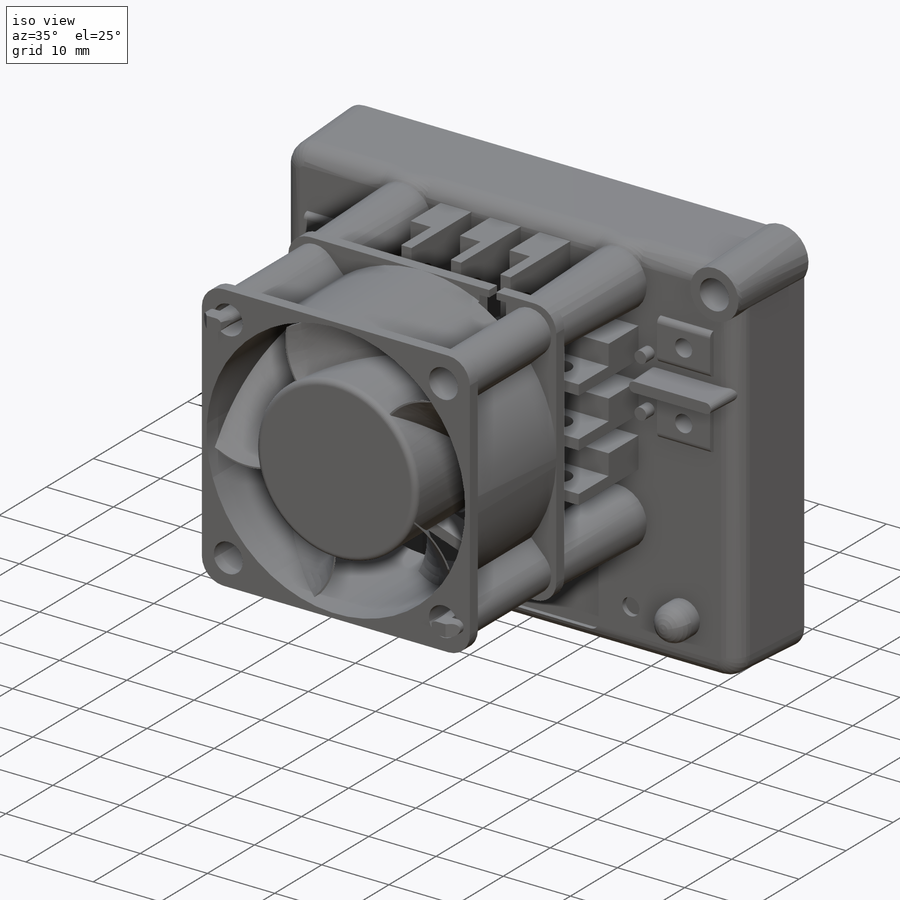
[diagram: iso view]
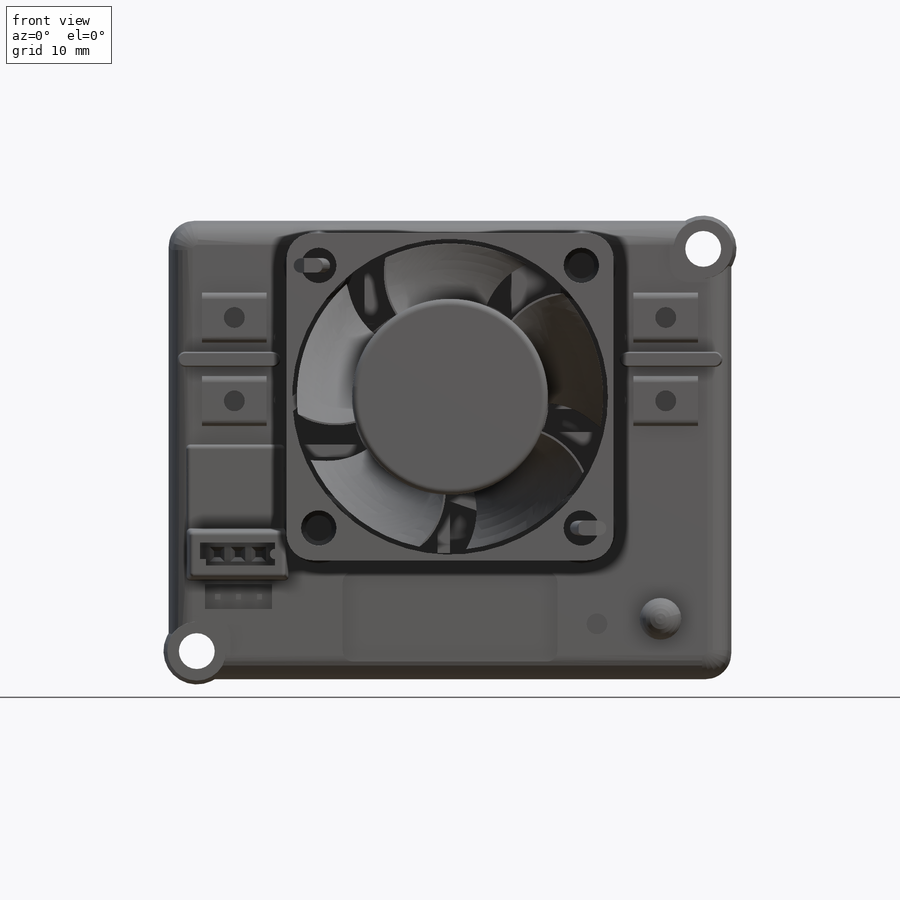
[diagram: front view]
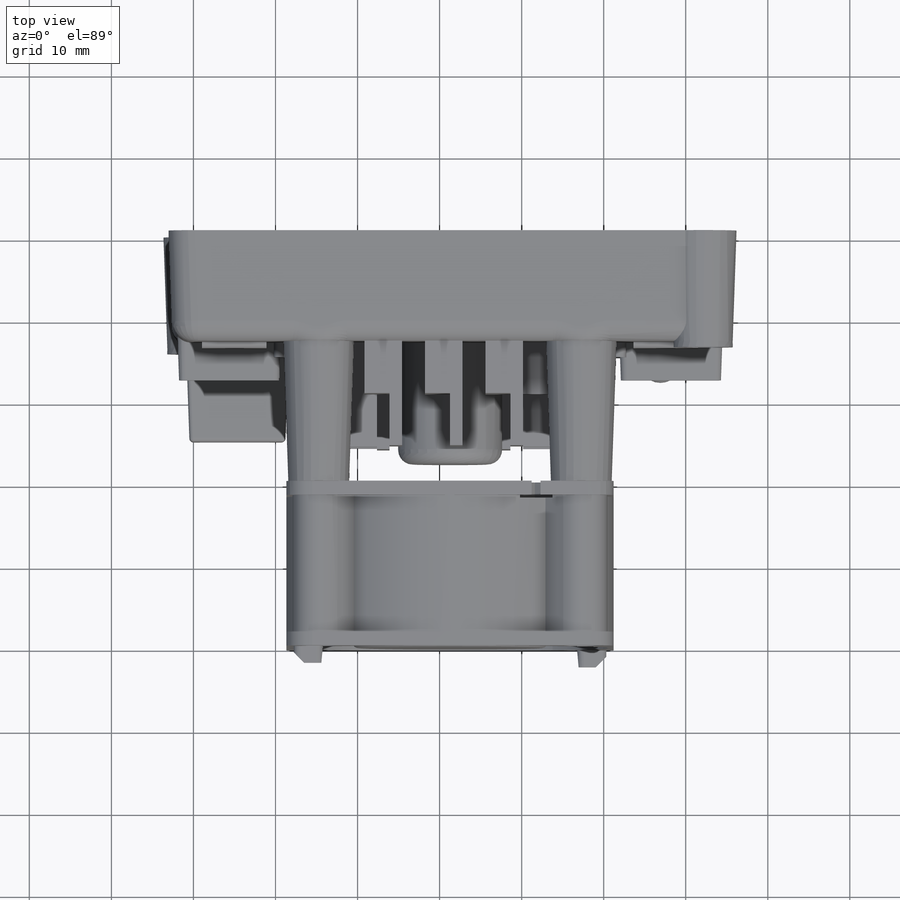
[diagram: top view]
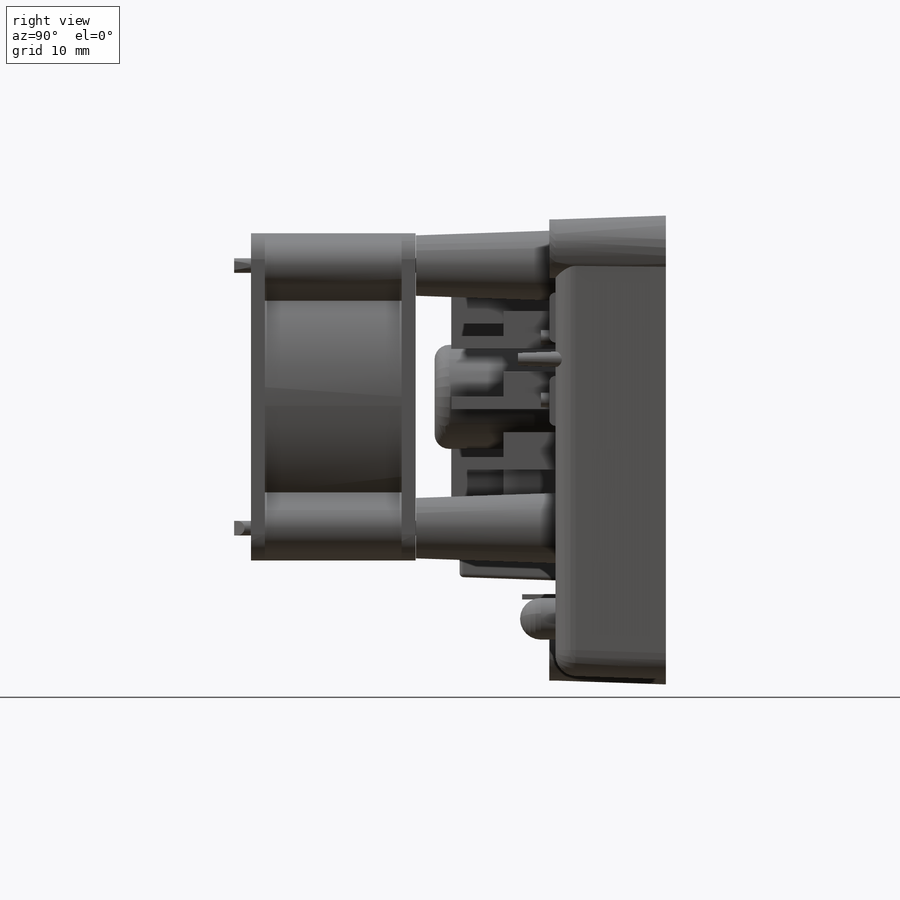
[diagram: right view]
SOLIDWORKS PART (.sldprt)
format: sldprt  version: not decoded by parser v0  size: 2,040,832 bytes
history: native  units: mm
features: sketch x45, extrude x23, plane x10, mirror x10, chamfer x10, cut_extrude x8, fillet x4, surface_op x3, pattern_circular x2, pattern_linear x2, material x1, dome x1 (+13 scaffold rows collapsed)
feature tree (132):
  scaffold x13  (default folders/planes/origin — collapsed)
  material  "Material <not specified>"
  surface_op  "Surface-Knit2"
  surface_op  "Surface-Knit3"
  surface_op  "Surface-Knit4"
  plane  "Plane1"  Offset=0.0254mm
  sketch  "Sketch1"  dims[D1=7.366mm D2=~34.550083mm]
  extrude  "Boss-Extrude1"  Depth=17.018mm
  sketch  "Sketch2"  dims[D2=1.27mm D3=1.778mm D4=1.778mm D1=0.0mm]
  extrude  "Boss-Extrude2"  Depth=10.16mm
  plane  "Plane2"  Offset=0.0254mm
  sketch  "Sketch3"  dims[D2=~0.912004mm D1=0.0mm]
  sketch  "Sketch4"  dims[D1=1.778mm]
  extrude  "Boss-Extrude3"  Depth=2.032mm
  sketch  "Sketch6"  dims[D1=0.762mm D2=1.27mm]
  cut_extrude  "Cut-Extrude1"  [1 undecoded]
  pattern_circular  "CirPattern1"  Count=2 Angle=360deg
  sketch  "Sketch7"  dims[c1.D5=4.3688mm c1.D6=7.112mm c1.D7=~13.902773mm c1.D1=~58.122465mm c1.D2=~65.438579mm c2.D1=61.722mm c2.D2=49.022mm c2.D4=18.034mm c2.D3=0.0mm]
  plane  "Plane3"  Offset=13.462mm
  sketch  "Sketch8"  dims[D1=8.128mm D2=~17.33088mm]
  extrude  "Boss-Extrude4"  [1 undecoded]
  extrude  "Boss-Extrude5"  [1 undecoded]
  sketch  "Sketch9"  dims[c1.D1=49.022mm c1.D2=61.722mm c2.D1=~53.144827mm c2.D2=~81.786629mm c3.D1=68.58mm c3.D2=55.88mm c3.D3=~1.212325mm]
  extrude  "Boss-Extrude6"  [1 undecoded]
  fillet  "Fillet1"  Radius=3.175mm
  sketch  "Sketch10"  dims[c1.D3=50.8mm c1.D4=0.762mm c2.D3=6.35mm c2.D1=0.0mm c2.D2=1.27mm]
  cut_extrude  "Cut-Extrude2"  Depth=0.762mm
  sketch  "Sketch11"  dims[c1.D1=~57.177746mm c1.D2=~10.189186mm c1.D3=~4.44144mm c2.D2=4.445mm c2.D3=10.16mm c2.D4=1.524mm c2.D5=7.9375mm c3.D2=3.048mm c3.D5=13.97mm]
  extrude  "Boss-Extrude7"  Depth=6.35mm
  extrude  "Boss-Extrude8"  [1 undecoded]
  sketch  "Sketch11<3>"  dims[D1=12.7mm]
  sketch  "Sketch12"  dims[c1.D1=~2.999938mm c1.D2=3.81mm c2.D1=2.794mm c2.D3=~6.574302mm]
  cut_extrude  "Cut-Extrude3"  [1 undecoded]
  pattern_linear  "LPattern1"  Count1=2 Count2=1 Spacing1=7.366mm Spacing2=2.54mm
  pattern_linear  "LPattern2"  Count1=2 Count2=1 Spacing1=7.366mm Spacing2=2.54mm
  pattern_circular  "CirPattern3"  Count=4 Angle=360deg
  extrude  "Boss-Extrude9"  [1 undecoded]
  sketch  "Sketch11<5>"  dims[D1=14.732mm]
  fillet  "Fillet2"  Radius=1.778mm
  sketch  "Sketch13"  dims[D1=~7.187793mm]
  extrude  "Boss-Extrude10"  Depth=0.762mm
  sketch  "Sketch14"  dims[D1=0.0mm]
  extrude  "Boss-Extrude11"  [1 undecoded]
  sketch  "Sketch15"  dims[D1=0.0mm]
  extrude  "Boss-Extrude12"  [1 undecoded]
  sketch  "Sketch16"  dims[D1=0.0mm]
  extrude  "Boss-Extrude13"  [1 undecoded]
  sketch  "Sketch17"  dims[D1=0.0mm]
  extrude  "Boss-Extrude15"  [1 undecoded]
  fillet  "Fillet3"  Radius=2.54mm
  sketch  "Sketch18"  dims[c1.D4=1.27mm c1.D5=~1.692823mm c1.D7=2.54mm c1.D1=~9.402158mm c1.D2=~24.989947mm c2.D1=26.162mm c2.D2=10.922mm c2.D3=0.762mm c2.D5=4.826mm c2.D6=6.35mm]
  cut_extrude  "Cut-Extrude4"  Depth=0.762mm
  sketch  "Sketch19"  dims[c1.D1=~5.261919mm c1.D3=5.08mm c1.D4=1.778mm c2.D1=8.636mm c2.D2=7.366mm c2.D5=13.716mm c2.D6=14.224mm c2.D7=7.62mm c2.D8=~4.180287mm]
  extrude  "Boss-Extrude16"  Depth=1.778mm
  dome  "Dome1"
  plane  "Plane4"  Offset=4.572mm
  sketch  "Sketch20"  dims[D1=10.668mm D2=2.54mm D3=1.524mm D4=0.508mm]
  extrude  "Boss-Extrude17"  [1 undecoded]
  plane  "Plane5"  Offset=11.176mm
  sketch  "Sketch21"  dims[D1=4.572mm D2=0.762mm D3=2.794mm]
  extrude  "Boss-Extrude18"  Depth=7.874mm
  sketch  "Sketch22"  dims[D1=~4.290422mm]
  cut_extrude  "Cut-Extrude5"  Depth=3.175mm
  plane  "Plane6"
  mirror  "Mirror1"
  sketch  "Sketch23"  dims[c1.D1=~5.181771mm c1.D2=~8.146411mm c2.D1=4.064mm c2.D2=8.128mm c2.D3=3.048mm c2.D4=8.128mm]
  cut_extrude  "Cut-Extrude6"  Depth=2.286mm
  plane  "Plane7"  Offset=11.684mm
  sketch  "Sketch24"  dims[c1.D1=~2.149231mm c1.D2=~8.596925mm c2.D1=~4.898983mm c2.D2=~10.358978mm c3.D1=9.144mm c3.D2=2.794mm c3.D3=3.81mm c3.D4=2.286mm c3.D5=11.684mm c3.D6=5.588mm]
  extrude  "Boss-Extrude19"  [1 undecoded]
  plane  "Plane8"  Offset=1.524mm
  sketch  "Sketch25"  dims[D1=10.16mm]
  extrude  "Boss-Extrude20"  [1 undecoded]
  fillet  "Fillet4"  Radius=0.508mm
  sketch  "Sketch27"  dims[D1=0.0mm]
  cut_extrude  "Cut-Extrude7"  [1 undecoded]
  sketch  "Sketch26"  dims[c1.D1=~0.848898mm c1.D2=~0.813689mm c2.D1=0.762mm c2.D2=0.762mm]
  extrude  "Boss-Extrude21"  Depth=10.16mm
  sketch  "Sketch29"  dims[D1=1.27mm]
  extrude  "Boss-Extrude22"  Depth=1.27mm
  sketch  "Sketch30"  dims[c1.D1=~15.607557mm c1.D2=0.635mm c1.D3=2.54mm c2.D1=3.0]
  extrude  "Boss-Extrude23"  Depth=6.35mm
  sketch  "Sketch31"  dims[D1=0.0mm]
  extrude  "Boss-Extrude24"  Depth=3.81mm
  sketch  "Sketch32"  dims[c1.D1=~1.366514mm c1.D2=0.762mm c1.D3=2.54mm c2.D1=3.0]
  cut_extrude  "Cut-Extrude8"  Depth=3.81mm
  chamfer  "Chamfer1"  Distance=0.508mm Angle=45deg
  plane  "Plane9"
  plane  "Plane10"
  sketch  "Sketch33"
  sketch  "Sketch34"
  sketch  "Sketch35"
  sketch  "0_0_Point"  dims[Diameter=2.0mm Width=0.0 Depth=0.0 StubLength=2.0mm]
  sketch  "1_0_Point"
  mirror  "1_0"
  chamfer  "Axis2"  Distance=2mm Diameter=2mm Width=0 Depth=0 StubLength=2mm
  sketch  "2_0_Point"
  mirror  "2_0"
  chamfer  "Axis3"  Distance=2mm Diameter=2mm Width=0 Depth=0 StubLength=2mm
  sketch  "3_0_Point"
  mirror  "3_0"
  chamfer  "Axis4"  Distance=2mm Diameter=2mm Width=0 Depth=0 StubLength=2mm
  sketch  "4_0_Point"
  mirror  "4_0"
  chamfer  "Axis5"  Distance=2mm Diameter=2mm Width=0 Depth=0 StubLength=2mm
  sketch  "4_1_Point"
  mirror  "4_1"
  chamfer  "Axis6"  Distance=2mm Diameter=2mm Width=0 Depth=0 StubLength=2mm
  sketch  "4_2_Point"
  mirror  "4_2"
  chamfer  "Axis7"  Distance=2mm Diameter=2mm Width=0 Depth=0 StubLength=2mm
  sketch  "5_0_Point"
  mirror  "5_0"
  chamfer  "Axis8"  Distance=2mm Diameter=2mm Width=0 Depth=0 StubLength=2mm
  sketch  "5_1_Point"
  mirror  "5_1"
  chamfer  "Axis9"  Distance=2mm Diameter=2mm Width=0 Depth=0 StubLength=2mm
  sketch  "5_2_Point"
  mirror  "5_2"
  chamfer  "Axis10"  Distance=2mm Diameter=2mm Width=0 Depth=0 StubLength=2mm
decode coverage: 67 of 108 modeling features carry decoded parameters
note: ~ marks probable driven/reference dimensions
note: 15 parameter values undecoded
summary: no parameter record found for 15 features
note: suppression state not decoded; provenance and decode notes live in map.json
